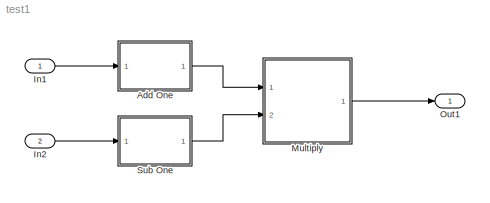
MODEL test1
KIND model
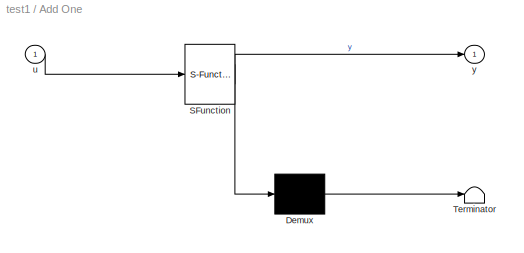
BLOCK [SubSystem] Add One
  ErrorFcn = Stateflow.Translate.translate
  PermitHierarchicalResolution = ExplicitOnly
  Ports = [1, 1]
  RequestExecContextInheritance = off
  SFBlockType = MATLAB Function
  SID = 5
  TreatAsAtomicUnit = on
  Variant = off
BLOCK [Demux] Add One/ Demux 
  Outputs = 1
  Ports = [1, 1]
  SID = 5::20
BLOCK [S-Function] Add One/ SFunction 
  EnableBusSupport = on
  FunctionName = sf_sfun
  PortCounts = [1 2]
  Ports = [1, 2]
  SFcnIsStateOwnerBlock = off
  SFunctionDeploymentMode = off
  SID = 5::19
  Tag = Stateflow S-Function test1 2
BLOCK [Terminator] Add One/ Terminator 
  SID = 5::21
BLOCK [Inport] Add One/u
  IconDisplay = Port number
  SID = 5::1
BLOCK [Outport] Add One/y
  IconDisplay = Port number
  SID = 5::5
BLOCK [Inport] In1
  IconDisplay = Port number
  SID = 1
BLOCK [Inport] In2
  IconDisplay = Port number
  Port = 2
  SID = 3
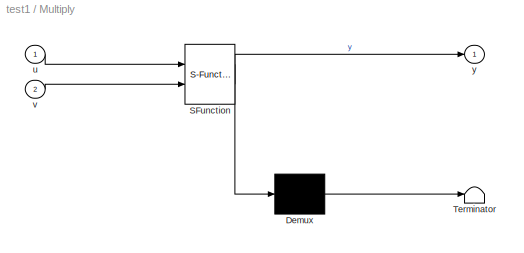
BLOCK [SubSystem] Multiply
  ErrorFcn = Stateflow.Translate.translate
  PermitHierarchicalResolution = ExplicitOnly
  Ports = [2, 1]
  RequestExecContextInheritance = off
  SFBlockType = MATLAB Function
  SID = 7
  TreatAsAtomicUnit = on
  Variant = off
BLOCK [Demux] Multiply/ Demux 
  Outputs = 1
  Ports = [1, 1]
  SID = 7::20
BLOCK [S-Function] Multiply/ SFunction 
  EnableBusSupport = on
  FunctionName = sf_sfun
  PortCounts = [2 2]
  Ports = [2, 2]
  SFcnIsStateOwnerBlock = off
  SFunctionDeploymentMode = off
  SID = 7::19
  Tag = Stateflow S-Function test1 3
BLOCK [Terminator] Multiply/ Terminator 
  SID = 7::21
BLOCK [Inport] Multiply/u
  IconDisplay = Port number
  SID = 7::1
BLOCK [Inport] Multiply/v
  IconDisplay = Port number
  Port = 2
  SID = 7::22
BLOCK [Outport] Multiply/y
  IconDisplay = Port number
  SID = 7::5
BLOCK [Outport] Out1
  IconDisplay = Port number
  SID = 8
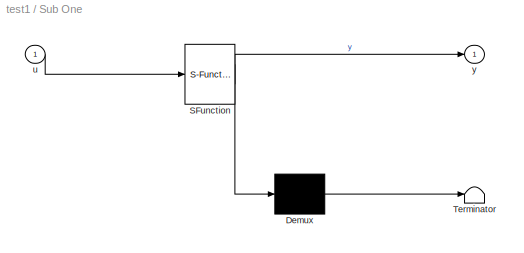
BLOCK [SubSystem] Sub One
  ErrorFcn = Stateflow.Translate.translate
  PermitHierarchicalResolution = ExplicitOnly
  Ports = [1, 1]
  RequestExecContextInheritance = off
  SFBlockType = MATLAB Function
  SID = 6
  TreatAsAtomicUnit = on
  Variant = off
BLOCK [Demux] Sub One/ Demux 
  Outputs = 1
  Ports = [1, 1]
  SID = 6::20
BLOCK [S-Function] Sub One/ SFunction 
  EnableBusSupport = on
  FunctionName = sf_sfun
  PortCounts = [1 2]
  Ports = [1, 2]
  SFcnIsStateOwnerBlock = off
  SFunctionDeploymentMode = off
  SID = 6::19
  Tag = Stateflow S-Function test1 1
BLOCK [Terminator] Sub One/ Terminator 
  SID = 6::21
BLOCK [Inport] Sub One/u
  IconDisplay = Port number
  SID = 6::1
BLOCK [Outport] Sub One/y
  IconDisplay = Port number
  SID = 6::5
LINE Add One/ Demux :1 -> Add One/ Terminator :1
LINE Add One/ SFunction :1 -> Add One/ Demux :1
LINE Add One/ SFunction :2 -> Add One/y:1
LINE Add One/u:1 -> Add One/ SFunction :1
LINE Add One:1 -> Multiply:1
LINE In1:1 -> Add One:1
LINE In2:1 -> Sub One:1
LINE Multiply/ Demux :1 -> Multiply/ Terminator :1
LINE Multiply/ SFunction :1 -> Multiply/ Demux :1
LINE Multiply/ SFunction :2 -> Multiply/y:1
LINE Multiply/u:1 -> Multiply/ SFunction :1
LINE Multiply/v:1 -> Multiply/ SFunction :2
LINE Multiply:1 -> Out1:1
LINE Sub One/ Demux :1 -> Sub One/ Terminator :1
LINE Sub One/ SFunction :1 -> Sub One/ Demux :1
LINE Sub One/ SFunction :2 -> Sub One/y:1
LINE Sub One/u:1 -> Sub One/ SFunction :1
LINE Sub One:1 -> Multiply:2
CHART Sub One states=1 transitions=1
  STATE_LABEL 'eML_blk_kernel()'
CHART Add One states=1 transitions=1
  STATE_LABEL 'eML_blk_kernel()'
CHART Multiply states=1 transitions=1
  STATE_LABEL 'eML_blk_kernel()'
